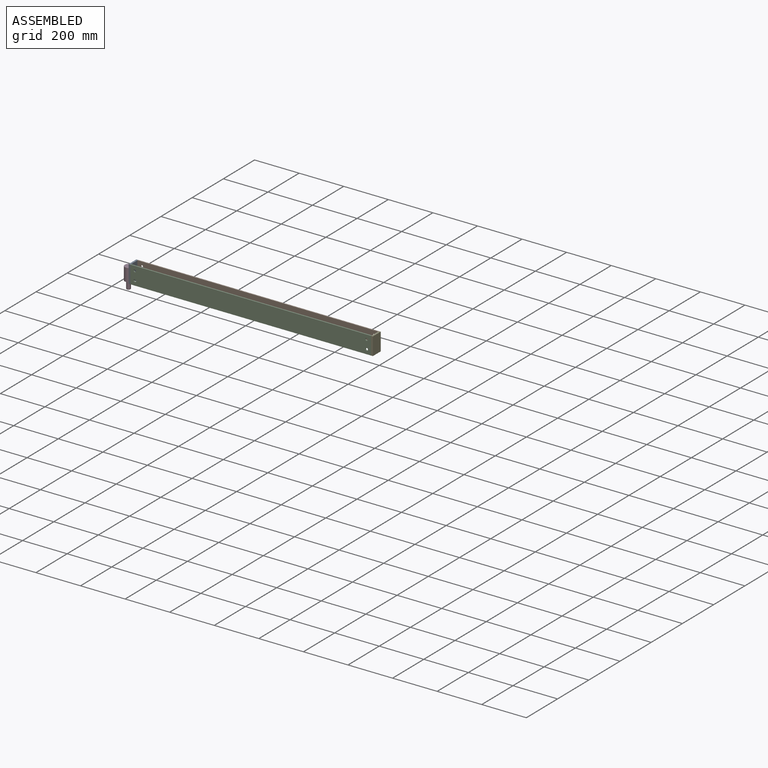
[diagram: assembled view]
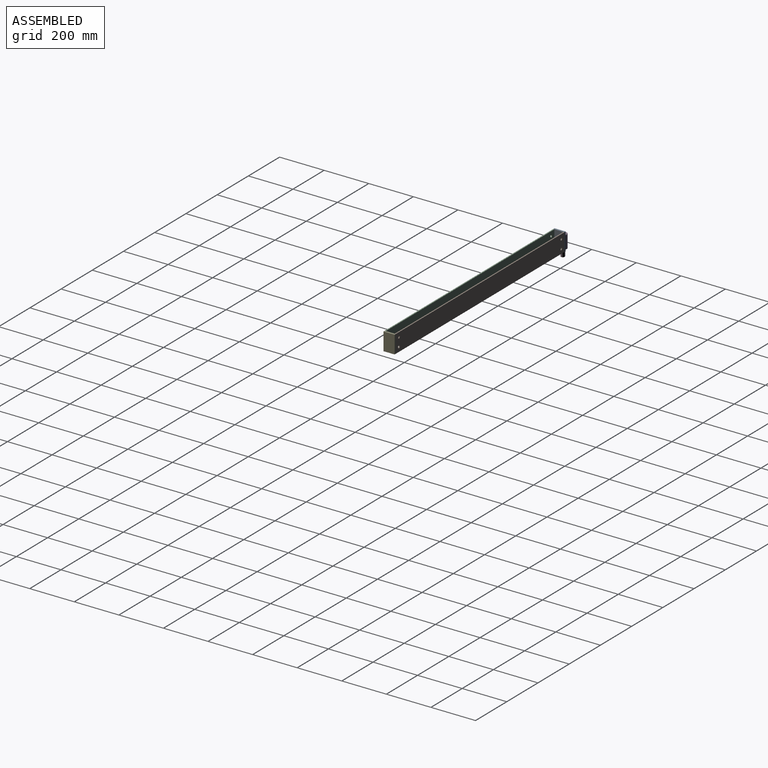
[diagram: assembled view, second angle]
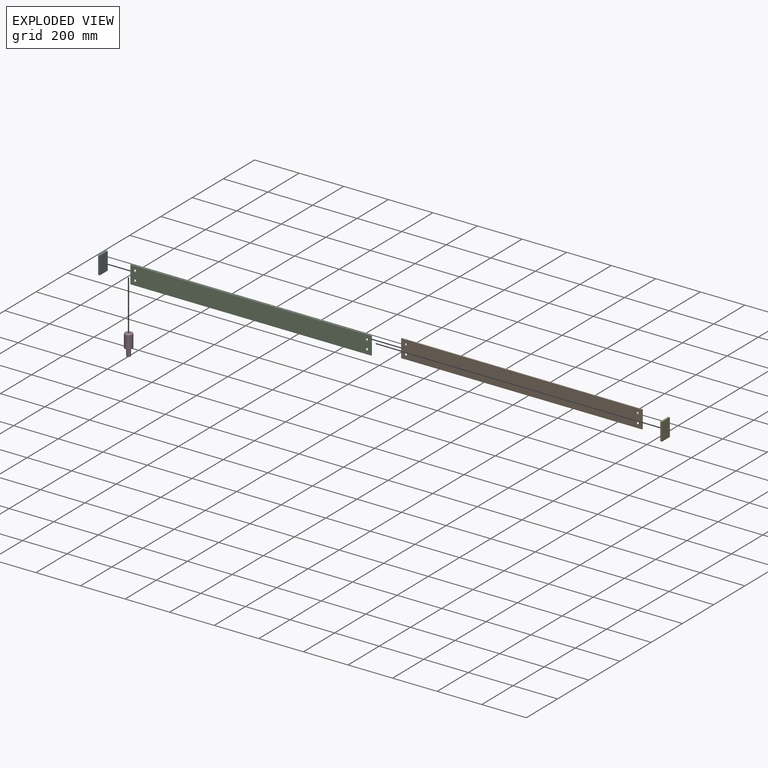
[diagram: exploded view]
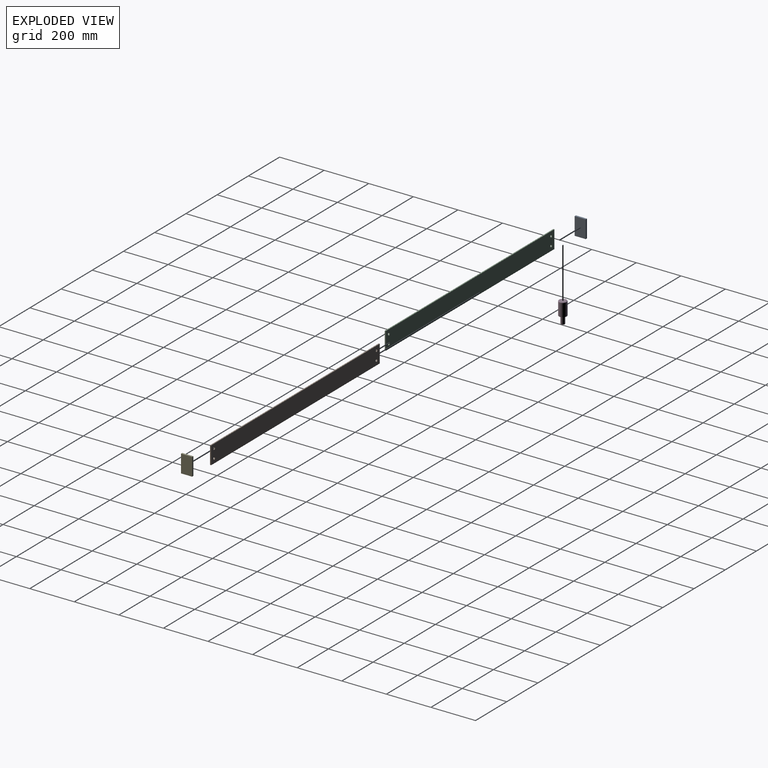
[diagram: exploded view, second angle]
ASSEMBLY  parts=5 mates=4
PART A: 6 faces, bbox 8x50x80 mm
  f0: plane 80x8mm, normal (0,1,0), area 640mm2, adj f1,f3,f4,f5
  f1: plane 50x8mm, normal (0,0,1), area 400mm2, adj f0,f2,f4,f5
  f2: plane 80x8mm, normal (0,-1,0), area 640mm2, adj f1,f3,f4,f5
  f3: plane 50x8mm, normal (0,0,-1), area 400mm2, adj f0,f2,f4,f5
  f4: plane 80x50mm, normal (1,0,0), area 4000mm2, adj f0,f1,f2,f3
  f5: plane 80x50mm, normal (-1,0,0), area 4000mm2, adj f0,f1,f2,f3
PART B: 10 faces, bbox 1080x5x80 mm
  f0: plane 1080x5mm, normal (0,0,1), area 5400mm2, adj f1,f7,f8,f9
  f1: plane 80x5mm, normal (-1,0,0), area 400mm2, adj f0,f2,f8,f9
  f2: plane 1080x5mm, normal (0,0,-1), area 5400mm2, adj f1,f7,f8,f9
  f3: cylinder r=5.5mm len=11mm, axis (0,1,0), area 172.8mm2, adj f8,f9
  f4: cylinder r=5.5mm len=11mm, axis (0,1,0), area 172.8mm2, adj f8,f9
  f5: cylinder r=5.5mm len=11mm, axis (0,1,0), area 172.8mm2, adj f8,f9
  f6: cylinder r=5.5mm len=11mm, axis (0,1,0), area 172.8mm2, adj f8,f9
  f7: plane 80x5mm, normal (1,0,0), area 400mm2, adj f0,f2,f8,f9
  f8: plane 1080x80mm, normal (0,-1,0), area 86019.9mm2, adj f0,f1,f2,f3,f4,f5,f6,f7
  f9: plane 1080x80mm, normal (0,1,0), area 86019.9mm2, adj f0,f1,f2,f3,f4,f5,f6,f7
PART C: same geometry as B
PART D: 7 faces, bbox 37.9x37.9x95 mm
  f0: plane 12x12mm, normal (0,0,1), area 113.1mm2, adj f1
  f1: torus R=6mm, axis (0,0,1), area 234.2mm2, adj f0,f2
  f2: cylinder r=9mm len=32mm, axis (0,0,1), area 1809.6mm2, adj f1,f3
  f3: plane 35x35mm, normal (0,0,1), area 707.6mm2, adj f2,f4
  f4: cylinder r=17.5mm len=57mm, axis (0,0,1), area 6267.5mm2, adj f3,f5
  f5: torus R=14.5mm, axis (0,0,1), area 485.9mm2, adj f4,f6
  f6: plane 29x29mm, normal (0,0,-1), area 660.5mm2, adj f5
PART E: same geometry as A
PLACE A t=(38.7,-94,34.86)mm fixed
PLACE B t=(46.7,-69,17.97)mm
PLACE C t=(46.7,-114,17.97)mm
PLACE D rot(axis=(0,1,0),180deg) t=(21.2,-94,50.98)mm
PLACE E t=(1126.7,-94,34.86)mm
MATE fastened E.f5 <-> B.f7  axis (-1,0,0) through (1126.7,-69,30.98)mm
MATE fastened C.f1 <-> A.f4  axis (-1,0,0) through (46.7,-119,30.98)mm
MATE fastened B.f1 <-> A.f4  axis (-1,0,0) through (46.7,-69,30.98)mm
MATE fastened D.f1 <-> A.f3  axis (0,0,-1) through (21.2,-94,-9.02)mm
